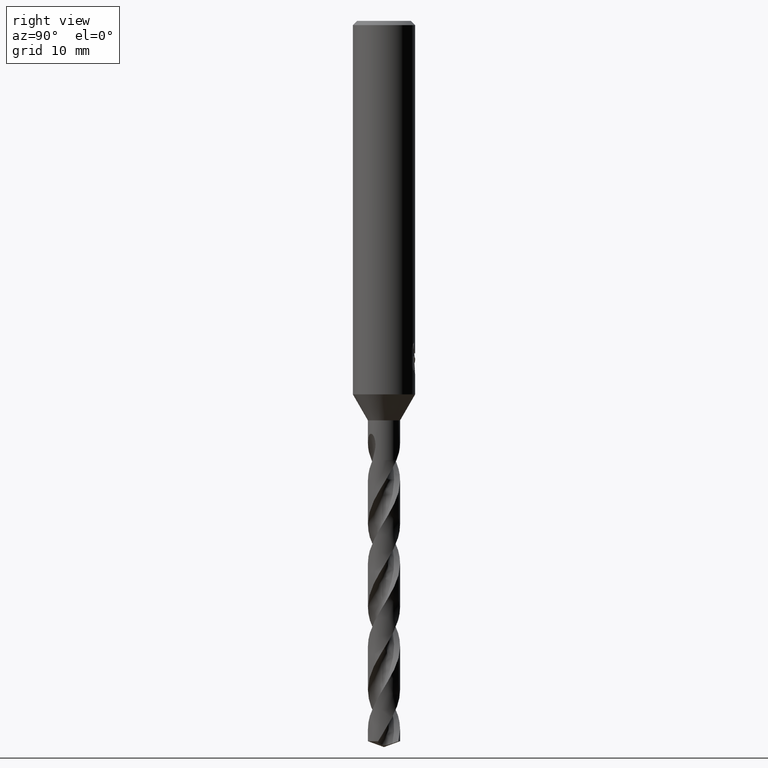
[diagram: clean part render]
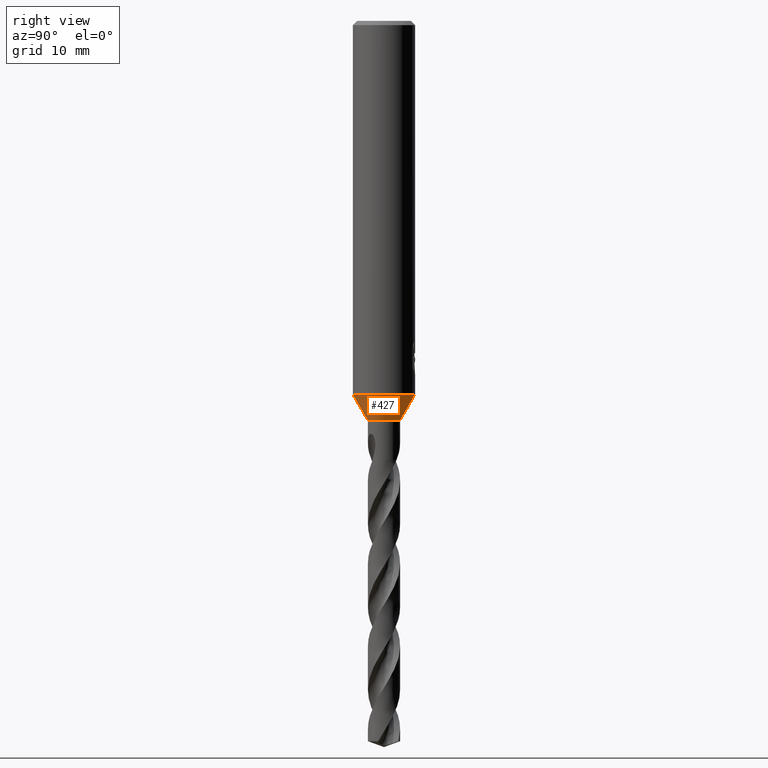
[diagram: same view with one face highlighted and labeled with its STEP entity id]
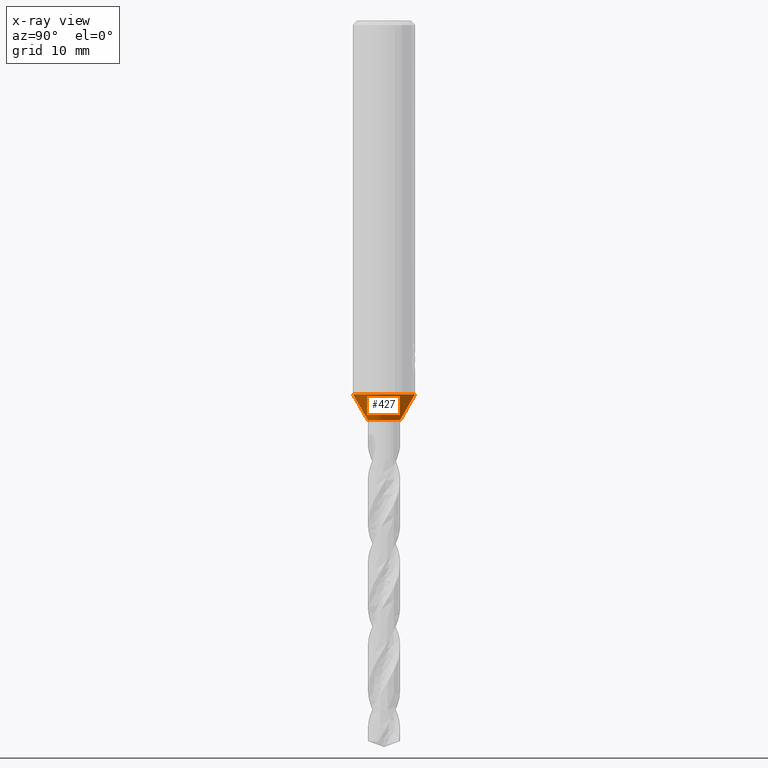
[diagram: x-ray of the same camera — body ghosted, the highlighted face saturated]
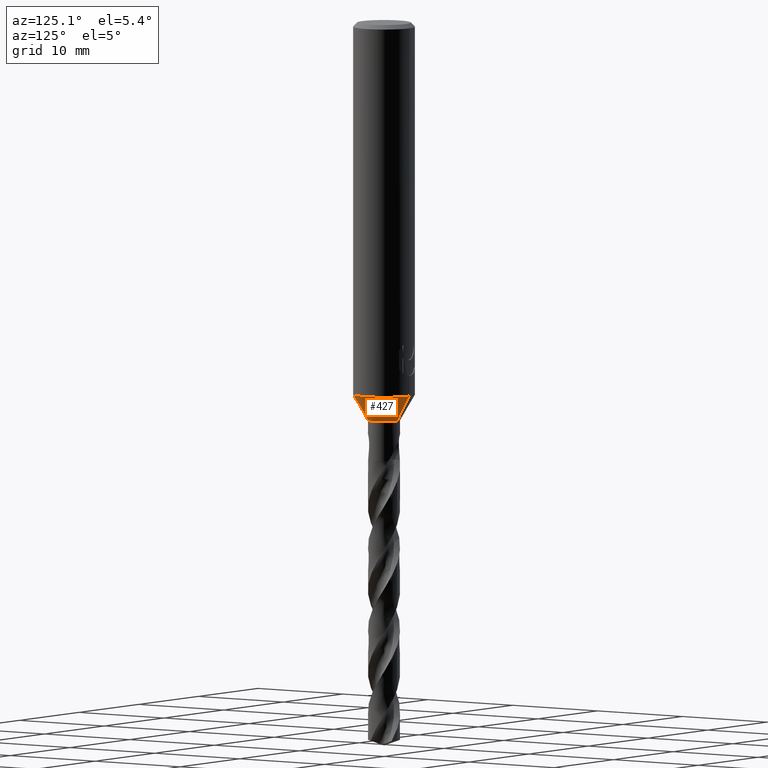
[diagram: same view with one face highlighted and labeled with its STEP entity id]
A machine part, right view. The second image highlights one B-rep face of the part: STEP entity #427.
The next image is the same camera in x-ray: the body ghosted, the highlighted face saturated — about 0% of this face is hidden behind the body in this view.
A second angle (auxiliary view) of the same face is appended — the face is thin or edge-on in the first view.
In plain terms, the highlighted conical surface has half-angle 30 deg.
Its self-contained STEP definition (entity closure, byte-faithful):
#307=VERTEX_POINT('',#841);
#387=EDGE_CURVE('',#737,#397,#928,.T.);
#397=VERTEX_POINT('',#941);
#427=ADVANCED_FACE('',(#973),#974,.T.);
#531=VERTEX_POINT('',#1089);
#599=EDGE_CURVE('',#531,#307,#1162,.T.);
#601=EDGE_CURVE('',#307,#737,#1164,.T.);
#737=VERTEX_POINT('',#1310);
#775=EDGE_CURVE('',#531,#397,#1351,.T.);
#841=CARTESIAN_POINT('',(0.0,1.55,-38.5114736709749));
#928=LINE('',#2197,#2198);
#941=CARTESIAN_POINT('',(3.67381906146713E-016,-3.0,-36.0));
#973=FACE_OUTER_BOUND('',#3192,.T.);
#974=CONICAL_SURFACE('',#3193,2.275,0.523598775598299);
#1089=CARTESIAN_POINT('',(0.0,3.0,-36.0));
#1162=LINE('',#5549,#5550);
#1164=CIRCLE('',#5553,1.55);
#1310=CARTESIAN_POINT('',(1.89813984842468E-016,-1.55,-38.5114736709749));
#1351=CIRCLE('',#6910,3.0);
#2197=CARTESIAN_POINT('',(2.78597945494591E-016,-2.275,-37.2557368354874));
#2198=VECTOR('',#7401,1.0);
#3192=EDGE_LOOP('',(#7452,#7453,#7454,#7455));
#3193=AXIS2_PLACEMENT_3D('',#7456,#7457,#7458);
#5549=CARTESIAN_POINT('',(-2.78597945494591E-016,2.275,-37.2557368354874));
#5550=VECTOR('',#7645,1.0);
#5553=AXIS2_PLACEMENT_3D('',#7646,#7647,#7648);
#6910=AXIS2_PLACEMENT_3D('',#7830,#7831,#7832);
#7401=DIRECTION('',(6.12303176911189E-017,-0.5,0.866025403784439));
#7452=ORIENTED_EDGE('',*,*,#599,.F.);
#7453=ORIENTED_EDGE('',*,*,#775,.T.);
#7454=ORIENTED_EDGE('',*,*,#387,.F.);
#7455=ORIENTED_EDGE('',*,*,#601,.F.);
#7456=CARTESIAN_POINT('',(0.0,0.0,-37.2557368354874));
#7457=DIRECTION('',(-0.0,-0.0,1.0));
#7458=DIRECTION('',(0.0,1.0,0.0));
#7645=DIRECTION('',(6.12303176911189E-017,-0.5,-0.866025403784439));
#7646=CARTESIAN_POINT('',(0.0,0.0,-38.5114736709749));
#7647=DIRECTION('',(0.0,0.0,-1.0));
#7648=DIRECTION('',(0.0,1.0,0.0));
#7830=CARTESIAN_POINT('',(0.0,0.0,-36.0));
#7831=DIRECTION('',(0.0,0.0,-1.0));
#7832=DIRECTION('',(0.0,1.0,0.0));